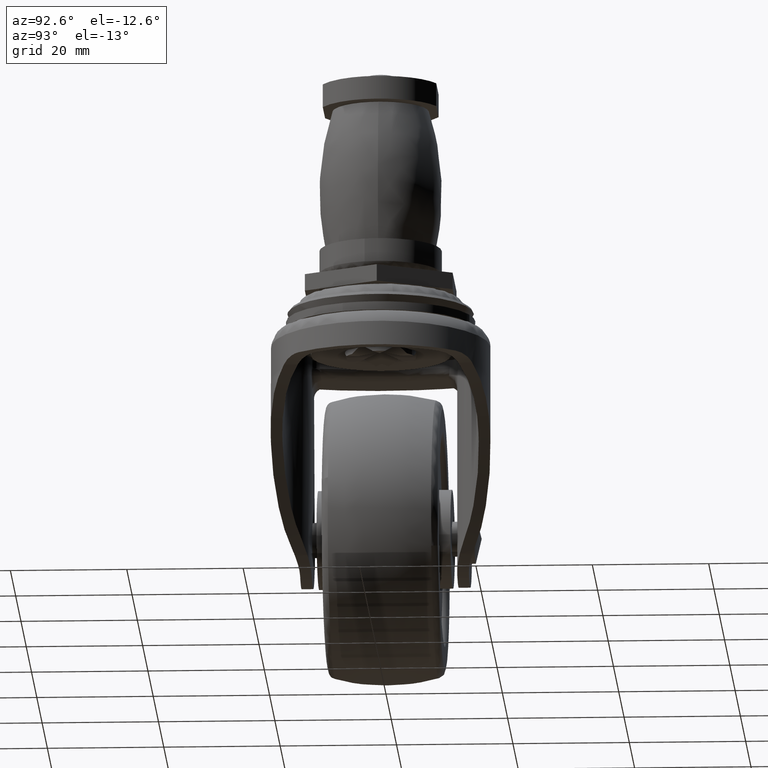
[diagram: clean part render]
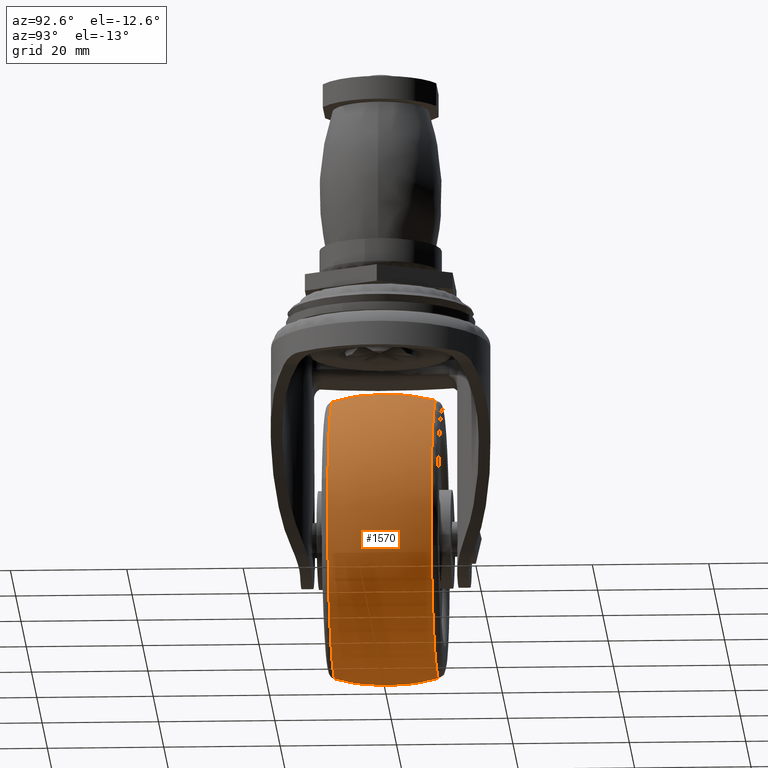
[diagram: same view with one face highlighted and labeled with its STEP entity id]
A machine part, auxiliary view. The second image highlights one B-rep face of the part: STEP entity #1570.
In plain terms, the highlighted face is a freeform B-spline surface patch.
Its self-contained STEP definition (entity closure, byte-faithful):
#848=CARTESIAN_POINT('',(-10.439454703184049,-8.880695709288222,-63.266084003544890));
#849=VERTEX_POINT('',#848);
#863=CARTESIAN_POINT('',(4.105179906104961,-8.880690052535300,-35.068019101666721));
#864=VERTEX_POINT('',#863);
#865=CARTESIAN_POINT('',(-10.439454703184047,-8.880695709288222,-63.266084003544890));
#866=CARTESIAN_POINT('',(4.854615588697800,-8.880694482776057,-57.385927195612339));
#867=CARTESIAN_POINT('',(4.854615588697799,-8.880691121592754,-41.000419716403648));
#868=CARTESIAN_POINT('',(4.854615588697799,-8.880690503421233,-37.986881582473544));
#869=CARTESIAN_POINT('',(4.105179906104962,-8.880690052535300,-35.068019101666728));
#877=(BOUNDED_CURVE()B_SPLINE_CURVE(2,(#865,#866,#867,#868,#869),.UNSPECIFIED.,.F.,.U.)B_SPLINE_CURVE_WITH_KNOTS((3,2,3),(0.060939058706765,0.250000000000000,0.292443227688454),.UNSPECIFIED.)CURVE()GEOMETRIC_REPRESENTATION_ITEM()RATIONAL_B_SPLINE_CURVE((0.892016636076000,0.778501329410893,1.0,0.950274665701986,0.917433360887932))REPRESENTATION_ITEM(''));
#878=EDGE_CURVE('',#849,#864,#877,.T.);
#977=CARTESIAN_POINT('',(-19.0,-8.880686228260029,-17.145802844109390));
#978=VERTEX_POINT('',#977);
#979=CARTESIAN_POINT('',(4.105179906104962,-8.880690052535300,-35.068019101666721));
#980=CARTESIAN_POINT('',(-0.496462200613059,-8.880686228260029,-17.145802844109397));
#981=CARTESIAN_POINT('',(-19.0,-8.880686228260029,-17.145802844109390));
#989=(BOUNDED_CURVE()B_SPLINE_CURVE(2,(#979,#980,#981),.UNSPECIFIED.,.F.,.U.)B_SPLINE_CURVE_WITH_KNOTS((3,3),(0.292443227688454,0.500000000000000),.UNSPECIFIED.)CURVE()GEOMETRIC_REPRESENTATION_ITEM()RATIONAL_B_SPLINE_CURVE((0.917433360887932,0.756832115484562,1.0))REPRESENTATION_ITEM(''));
#990=EDGE_CURVE('',#864,#978,#989,.T.);
#992=CARTESIAN_POINT('',(-42.695069559291667,-8.880689074445112,-38.246069837917027));
#993=VERTEX_POINT('',#992);
#1007=CARTESIAN_POINT('',(-19.0,-8.880696014925480,-64.855036588697899));
#1008=VERTEX_POINT('',#1007);
#1009=CARTESIAN_POINT('',(-42.695069559291667,-8.880689074445112,-38.246069837917041));
#1010=CARTESIAN_POINT('',(-42.854617350474825,-8.880689253448450,-39.618624355387816));
#1011=CARTESIAN_POINT('',(-42.854617298097843,-8.880689454464706,-41.000420801296833));
#1012=CARTESIAN_POINT('',(-42.854616393888676,-8.880692924704890,-64.855036495101288));
#1013=CARTESIAN_POINT('',(-19.0,-8.880696014925480,-64.855036588697899));
#1021=(BOUNDED_CURVE()B_SPLINE_CURVE(2,(#1009,#1010,#1011,#1012,#1013),.UNSPECIFIED.,.F.,.U.)B_SPLINE_CURVE_WITH_KNOTS((3,2,3),(0.730000027505736,0.750000000000000,1.0),.UNSPECIFIED.)CURVE()GEOMETRIC_REPRESENTATION_ITEM()RATIONAL_B_SPLINE_CURVE((0.956886172328624,0.976568574719898,1.0,0.707106781186547,1.0))REPRESENTATION_ITEM(''));
#1022=EDGE_CURVE('',#993,#1008,#1021,.T.);
#1024=CARTESIAN_POINT('',(-19.0,-8.880696014925480,-64.855036588697899));
#1025=CARTESIAN_POINT('',(-14.572261859689476,-8.880696014925480,-64.855036588697899));
#1026=CARTESIAN_POINT('',(-10.439454703184047,-8.880695709288222,-63.266084003544890));
#1034=(BOUNDED_CURVE()B_SPLINE_CURVE(2,(#1024,#1025,#1026),.UNSPECIFIED.,.F.,.U.)B_SPLINE_CURVE_WITH_KNOTS((3,3),(0.0,0.060939058706765),.UNSPECIFIED.)CURVE()GEOMETRIC_REPRESENTATION_ITEM()RATIONAL_B_SPLINE_CURVE((1.0,0.928605451775655,0.892016636076000))REPRESENTATION_ITEM(''));
#1035=EDGE_CURVE('',#1008,#849,#1034,.T.);
#1064=CARTESIAN_POINT('',(4.028808374446284,8.880492444727326,-47.222694992819022));
#1065=VERTEX_POINT('',#1064);
#1066=CARTESIAN_POINT('',(-19.0,8.880482305599070,-17.145801290507279));
#1067=VERTEX_POINT('',#1066);
#1068=CARTESIAN_POINT('',(4.028808374446283,8.880492444727326,-47.222694992819015));
#1069=CARTESIAN_POINT('',(4.854615588697799,8.880491202717543,-44.166356662263802));
#1070=CARTESIAN_POINT('',(4.854615588697799,8.880490160262175,-41.000418939602589));
#1071=CARTESIAN_POINT('',(4.854615588697800,8.880482305599072,-17.145801290507272));
#1072=CARTESIAN_POINT('',(-19.0,8.880482305599070,-17.145801290507279));
#1080=(BOUNDED_CURVE()B_SPLINE_CURVE(2,(#1068,#1069,#1070,#1071,#1072),.UNSPECIFIED.,.F.,.U.)B_SPLINE_CURVE_WITH_KNOTS((3,2,3),(0.205522197708944,0.250000000000000,0.500000000000000),.UNSPECIFIED.)CURVE()GEOMETRIC_REPRESENTATION_ITEM()RATIONAL_B_SPLINE_CURVE((0.914323572239407,0.947891013284897,1.0,0.707106781186547,1.0))REPRESENTATION_ITEM(''));
#1081=EDGE_CURVE('',#1065,#1067,#1080,.T.);
#1184=CARTESIAN_POINT('',(-19.0,8.880498014925280,-64.855036588697899));
#1185=VERTEX_POINT('',#1184);
#1186=CARTESIAN_POINT('',(-19.0,8.880498014925280,-64.855036588697899));
#1187=CARTESIAN_POINT('',(-0.735367763811740,8.880498014925280,-64.855036588697899));
#1188=CARTESIAN_POINT('',(4.028808374446283,8.880492444727326,-47.222694992819015));
#1196=(BOUNDED_CURVE()B_SPLINE_CURVE(2,(#1186,#1187,#1188),.UNSPECIFIED.,.F.,.U.)B_SPLINE_CURVE_WITH_KNOTS((3,3),(0.0,0.205522197708944),.UNSPECIFIED.)CURVE()GEOMETRIC_REPRESENTATION_ITEM()RATIONAL_B_SPLINE_CURVE((1.0,0.759215767901650,0.914323572239407))REPRESENTATION_ITEM(''));
#1197=EDGE_CURVE('',#1185,#1065,#1196,.T.);
#1199=CARTESIAN_POINT('',(-42.695071078057943,8.880485195971028,-38.246069548614280));
#1200=VERTEX_POINT('',#1199);
#1201=CARTESIAN_POINT('',(-42.695071078057943,8.880485195971028,-38.246069548614280));
#1202=CARTESIAN_POINT('',(-42.854618842669289,8.880485526587291,-39.618624125742521));
#1203=CARTESIAN_POINT('',(-42.854618745929891,8.880485897861060,-41.000420632998598));
#1204=CARTESIAN_POINT('',(-42.854617075871332,8.880492307338187,-64.855036415826561));
#1205=CARTESIAN_POINT('',(-19.0,8.880498014925280,-64.855036588697899));
#1213=(BOUNDED_CURVE()B_SPLINE_CURVE(2,(#1201,#1202,#1203,#1204,#1205),.UNSPECIFIED.,.F.,.U.)B_SPLINE_CURVE_WITH_KNOTS((3,2,3),(0.730000026711500,0.750000000000000,1.0),.UNSPECIFIED.)CURVE()GEOMETRIC_REPRESENTATION_ITEM()RATIONAL_B_SPLINE_CURVE((0.956886170765374,0.976568573789393,1.0,0.707106781186547,1.0))REPRESENTATION_ITEM(''));
#1214=EDGE_CURVE('',#1200,#1185,#1213,.T.);
#1478=CARTESIAN_POINT('',(-42.449539180902050,-9.774574389234171,-38.274607386644682));
#1479=CARTESIAN_POINT('',(-43.832791040827090,-4.986535860791466,-38.113815879340628));
#1480=CARTESIAN_POINT('',(-43.832791040827097,-0.000099000000085,-38.113815879340628));
#1481=CARTESIAN_POINT('',(-43.832791040827097,4.986339228121400,-38.113815879340613));
#1482=CARTESIAN_POINT('',(-42.449538437390878,9.774378962850394,-38.274607473071669));
#1483=CARTESIAN_POINT('',(-42.607434160692144,-9.774574389234171,-39.632941095491930));
#1484=CARTESIAN_POINT('',(-43.999999999999993,-4.986535860791465,-39.552275581908553));
#1485=CARTESIAN_POINT('',(-44.0,-0.000099000000085,-39.552275581908560));
#1486=CARTESIAN_POINT('',(-44.0,4.986339228121399,-39.552275581908567));
#1487=CARTESIAN_POINT('',(-42.607433412174601,9.774378962850394,-39.632941138850420));
#1488=CARTESIAN_POINT('',(-42.607434160692151,-9.774574389234173,-41.000421000000109));
#1489=CARTESIAN_POINT('',(-44.000000000000014,-4.986535860791467,-41.000421000000102));
#1490=CARTESIAN_POINT('',(-44.0,-0.000099000000085,-41.000421000000102));
#1491=CARTESIAN_POINT('',(-44.000000000000007,4.986339228121401,-41.000421000000109));
#1492=CARTESIAN_POINT('',(-42.607433412174615,9.774378962850395,-41.000421000000102));
#1493=CARTESIAN_POINT('',(-42.607434160692144,-9.774574389234171,-64.607855160692253));
#1494=CARTESIAN_POINT('',(-44.000000000000014,-4.986535860791466,-66.000421000000117));
#1495=CARTESIAN_POINT('',(-44.000000000000014,-0.000099000000085,-66.000421000000102));
#1496=CARTESIAN_POINT('',(-44.0,4.986339228121400,-66.000421000000102));
#1497=CARTESIAN_POINT('',(-42.607433412174629,9.774378962850397,-64.607854412174731));
#1498=CARTESIAN_POINT('',(-18.999999999999996,-9.774574389234173,-64.607855160692239));
#1499=CARTESIAN_POINT('',(-19.000000000000004,-4.986535860791467,-66.000421000000088));
#1500=CARTESIAN_POINT('',(-19.0,-0.000099000000085,-66.000421000000102));
#1501=CARTESIAN_POINT('',(-18.999999999999996,4.986339228121401,-66.000421000000102));
#1502=CARTESIAN_POINT('',(-18.999999999999996,9.774378962850395,-64.607854412174703));
#1503=CARTESIAN_POINT('',(4.607434160692143,-9.774574389234171,-64.607855160692253));
#1504=CARTESIAN_POINT('',(6.000000000000002,-4.986535860791466,-66.000421000000117));
#1505=CARTESIAN_POINT('',(6.000000000000003,-0.000099000000085,-66.000421000000102));
#1506=CARTESIAN_POINT('',(6.000000000000002,4.986339228121400,-66.000421000000102));
#1507=CARTESIAN_POINT('',(4.607433412174609,9.774378962850397,-64.607854412174717));
#1508=CARTESIAN_POINT('',(4.607434160692143,-9.774574389234173,-41.000421000000109));
#1509=CARTESIAN_POINT('',(6.000000000000001,-4.986535860791467,-41.000421000000102));
#1510=CARTESIAN_POINT('',(6.000000000000002,-0.000099000000085,-41.000421000000102));
#1511=CARTESIAN_POINT('',(6.000000000000001,4.986339228121401,-41.000421000000109));
#1512=CARTESIAN_POINT('',(4.607433412174609,9.774378962850395,-41.000421000000102));
#1513=CARTESIAN_POINT('',(4.607434160692143,-9.774574389234171,-17.392986839307952));
#1514=CARTESIAN_POINT('',(6.000000000000002,-4.986535860791466,-16.000421000000099));
#1515=CARTESIAN_POINT('',(6.000000000000003,-0.000099000000085,-16.000421000000099));
#1516=CARTESIAN_POINT('',(6.000000000000002,4.986339228121400,-16.000421000000109));
#1517=CARTESIAN_POINT('',(4.607433412174609,9.774378962850397,-17.392987587825498));
#1518=CARTESIAN_POINT('',(-18.999999999999996,-9.774574389234173,-17.392986839307959));
#1519=CARTESIAN_POINT('',(-19.000000000000004,-4.986535860791467,-16.000421000000095));
#1520=CARTESIAN_POINT('',(-19.0,-0.000099000000085,-16.000421000000099));
#1521=CARTESIAN_POINT('',(-18.999999999999996,4.986339228121401,-16.000421000000099));
#1522=CARTESIAN_POINT('',(-18.999999999999996,9.774378962850395,-17.392987587825488));
#1530=(BOUNDED_SURFACE()B_SPLINE_SURFACE(2,2,((#1478,#1483,#1488,#1493,#1498,#1503,#1508,#1513,#1518),(#1479,#1484,#1489,#1494,#1499,#1504,#1509,#1514,#1519),(#1480,#1485,#1490,#1495,#1500,#1505,#1510,#1515,#1520),(#1481,#1486,#1491,#1496,#1501,#1506,#1511,#1516,#1521),(#1482,#1487,#1492,#1497,#1502,#1507,#1512,#1517,#1522)),.UNSPECIFIED.,.F.,.F.,.U.)B_SPLINE_SURFACE_WITH_KNOTS((3,2,3),(3,2,2,2,3),(0.0,10.236360747090449,20.472724174438351),(0.0,3.313707807691297,44.735064045000797,86.156420282310307,127.577776519619800),.UNSPECIFIED.)GEOMETRIC_REPRESENTATION_ITEM()RATIONAL_B_SPLINE_SURFACE(((0.890190349488654,0.908500888985242,0.930299149424518,0.657820837090154,0.930299149424518,0.657820837090154,0.930299149424518,0.657820837090154,0.930299149424518),(0.913709496305893,0.932503806792552,0.954877985054265,0.675200698437618,0.954877985054265,0.675200698437618,0.954877985054265,0.675200698437618,0.954877985054265),(0.956886126402807,0.976568547383107,1.0,0.707106781186548,1.0,0.707106781186548,1.0,0.707106781186548,1.0),(0.913709485000657,0.932503795254774,0.954877973239654,0.675200690083426,0.954877973239654,0.675200690083426,0.954877973239654,0.675200690083426,0.954877973239654),(0.890190337172292,0.908500876415542,0.930299136553225,0.657820827988775,0.930299136553225,0.657820827988775,0.930299136553225,0.657820827988775,0.930299136553225)))REPRESENTATION_ITEM('')SURFACE());
#1531=ORIENTED_EDGE('',*,*,#1022,.F.);
#1532=CARTESIAN_POINT('',(-42.695069559291667,-8.880689074445112,-38.246069837917034));
#1533=CARTESIAN_POINT('',(-43.832791414322152,-4.514257444276466,-38.113819092445368));
#1534=CARTESIAN_POINT('',(-43.832791411034790,-0.000099000000305,-38.113819064168844));
#1535=CARTESIAN_POINT('',(-43.832791407747465,4.514056355050029,-38.113819035892348));
#1536=CARTESIAN_POINT('',(-42.695071078057943,8.880485195971028,-38.246069548614280));
#1544=(BOUNDED_CURVE()B_SPLINE_CURVE(2,(#1532,#1533,#1534,#1535,#1536),.UNSPECIFIED.,.F.,.U.)B_SPLINE_CURVE_WITH_KNOTS((3,2,3),(0.396517802356272,0.500000000000000,0.603482129731750),.UNSPECIFIED.)CURVE()GEOMETRIC_REPRESENTATION_ITEM()RATIONAL_B_SPLINE_CURVE((0.894624861306823,0.917631098293788,0.956886118190660,0.917631124055573,0.894624891503311))REPRESENTATION_ITEM(''));
#1545=EDGE_CURVE('',#993,#1200,#1544,.T.);
#1546=ORIENTED_EDGE('',*,*,#1545,.T.);
#1547=ORIENTED_EDGE('',*,*,#1214,.T.);
#1548=ORIENTED_EDGE('',*,*,#1197,.T.);
#1549=ORIENTED_EDGE('',*,*,#1081,.T.);
#1550=CARTESIAN_POINT('',(-19.0,-8.880686228260029,-17.145802844109387));
#1551=CARTESIAN_POINT('',(-19.000000000000004,-4.514255948563644,-16.000421000000099));
#1552=CARTESIAN_POINT('',(-19.0,-0.000099000000085,-16.000421000000099));
#1553=CARTESIAN_POINT('',(-19.0,4.514054836116962,-16.000421000000095));
#1554=CARTESIAN_POINT('',(-19.0,8.880482305599070,-17.145801290507272));
#1562=(BOUNDED_CURVE()B_SPLINE_CURVE(2,(#1550,#1551,#1552,#1553,#1554),.UNSPECIFIED.,.F.,.U.)B_SPLINE_CURVE_WITH_KNOTS((3,2,3),(0.396517835237267,0.500000000000000,0.603482096340281),.UNSPECIFIED.)CURVE()GEOMETRIC_REPRESENTATION_ITEM()RATIONAL_B_SPLINE_CURVE((0.934933487820568,0.958976301696179,1.0,0.958976328821066,0.934933519614814))REPRESENTATION_ITEM(''));
#1563=EDGE_CURVE('',#978,#1067,#1562,.T.);
#1564=ORIENTED_EDGE('',*,*,#1563,.F.);
#1565=ORIENTED_EDGE('',*,*,#990,.F.);
#1566=ORIENTED_EDGE('',*,*,#878,.F.);
#1567=ORIENTED_EDGE('',*,*,#1035,.F.);
#1568=EDGE_LOOP('',(#1531,#1546,#1547,#1548,#1549,#1564,#1565,#1566,#1567));
#1569=FACE_OUTER_BOUND('',#1568,.T.);
#1570=ADVANCED_FACE('',(#1569),#1530,.T.);